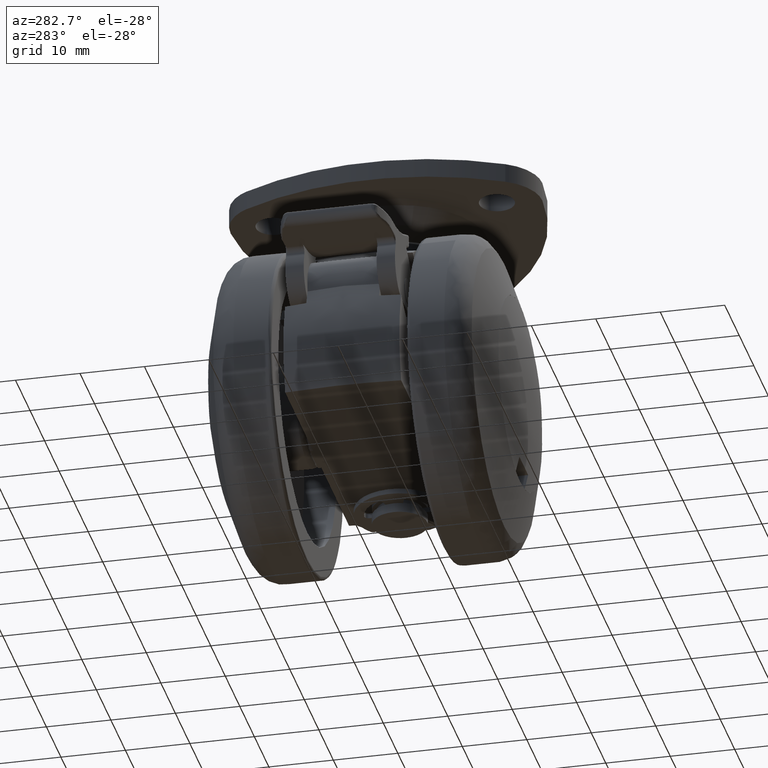
[diagram: clean part render]
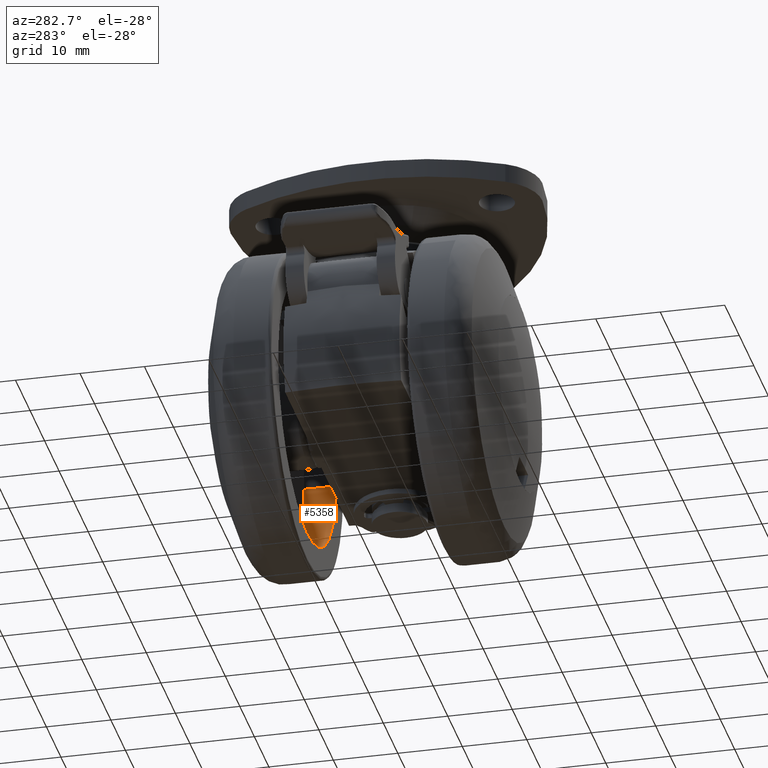
[diagram: same view with one face highlighted and labeled with its STEP entity id]
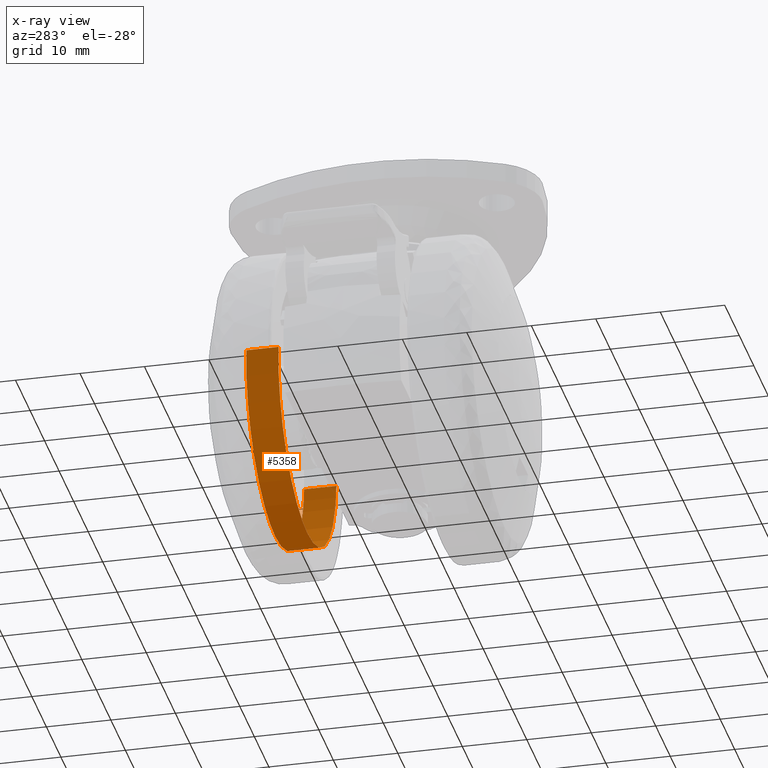
[diagram: x-ray of the same camera — body ghosted, the highlighted face saturated]
A machine part, auxiliary view. The second image highlights one B-rep face of the part: STEP entity #5358.
The next image is the same camera in x-ray: the body ghosted, the highlighted face saturated — about 1% of this face is hidden behind the body in this view.
In plain terms, the highlighted face is a freeform B-spline surface patch.
Its self-contained STEP definition (entity closure, byte-faithful):
#5260=CARTESIAN_POINT('',(19.938346674662551,10.374999999999989,-1.569181914556907));
#5261=CARTESIAN_POINT('',(18.369164760105640,10.374999999999998,-21.507528589219461));
#5262=CARTESIAN_POINT('',(-1.569181914556911,10.375000000000000,-19.938346674662551));
#5263=CARTESIAN_POINT('',(-21.507528589219461,10.374999999999998,-18.369164760105640));
#5264=CARTESIAN_POINT('',(-19.938346674662551,10.374999999999989,1.569181914556915));
#5265=CARTESIAN_POINT('',(19.938346674662551,15.628125000000010,-1.569181914556905));
#5266=CARTESIAN_POINT('',(18.369164760105640,15.628125000000024,-21.507528589219461));
#5267=CARTESIAN_POINT('',(-1.569181914556911,15.628125000000020,-19.938346674662540));
#5268=CARTESIAN_POINT('',(-21.507528589219461,15.628125000000024,-18.369164760105640));
#5269=CARTESIAN_POINT('',(-19.938346674662551,15.628125000000010,1.569181914556917));
#5277=(BOUNDED_SURFACE()B_SPLINE_SURFACE(2,1,((#5260,#5265),(#5261,#5266),(#5262,#5267),(#5263,#5268),(#5264,#5269)),.UNSPECIFIED.,.F.,.F.,.U.)B_SPLINE_SURFACE_WITH_KNOTS((3,2,3),(2,2),(0.0,33.137084989847587,66.274169979695188),(0.0,5.253125000000020),.UNSPECIFIED.)GEOMETRIC_REPRESENTATION_ITEM()RATIONAL_B_SPLINE_SURFACE(((1.0,1.0),(0.707106781186548,0.707106781186548),(1.0,1.0),(0.707106781186548,0.707106781186548),(1.0,1.0)))REPRESENTATION_ITEM('')SURFACE());
#5278=CARTESIAN_POINT('',(0.0,10.500000000000000,-20.0));
#5279=VERTEX_POINT('',#5278);
#5280=CARTESIAN_POINT('',(19.938347830738941,10.499999999999730,-1.569167225075318));
#5281=VERTEX_POINT('',#5280);
#5282=CARTESIAN_POINT('',(0.0,10.500000000000000,-20.0));
#5283=CARTESIAN_POINT('',(18.487823496091725,10.500000000000000,-19.999999999999996));
#5284=CARTESIAN_POINT('',(19.938347830738945,10.499999999999732,-1.569167225075318));
#5292=(BOUNDED_CURVE()B_SPLINE_CURVE(2,(#5282,#5283,#5284),.UNSPECIFIED.,.F.,.U.)B_SPLINE_CURVE_WITH_KNOTS((3,3),(0.0,0.236331426928950),.UNSPECIFIED.)CURVE()GEOMETRIC_REPRESENTATION_ITEM()RATIONAL_B_SPLINE_CURVE((1.0,0.723120510640014,0.969723619742465))REPRESENTATION_ITEM(''));
#5293=EDGE_CURVE('',#5279,#5281,#5292,.T.);
#5294=ORIENTED_EDGE('',*,*,#5293,.T.);
#5295=CARTESIAN_POINT('',(19.938347816798331,15.500000000000000,-1.569167402210918));
#5296=VERTEX_POINT('',#5295);
#5297=CARTESIAN_POINT('',(19.938347830738941,10.499999999999730,-1.569167225075318));
#5298=CARTESIAN_POINT('',(19.938347816798331,15.500000000000000,-1.569167402210918));
#5299=QUASI_UNIFORM_CURVE('',1,(#5297,#5298),.UNSPECIFIED.,.F.,.U.);
#5300=EDGE_CURVE('',#5281,#5296,#5299,.T.);
#5301=ORIENTED_EDGE('',*,*,#5300,.T.);
#5302=CARTESIAN_POINT('',(0.0,15.500000000000000,-19.999999999999989));
#5303=VERTEX_POINT('',#5302);
#5304=CARTESIAN_POINT('',(0.0,15.500000000000000,-19.999999999999989));
#5305=CARTESIAN_POINT('',(18.487823331334962,15.500000000000000,-19.999999999999989));
#5306=CARTESIAN_POINT('',(19.938347816798331,15.500000000000004,-1.569167402210918));
#5314=(BOUNDED_CURVE()B_SPLINE_CURVE(2,(#5304,#5305,#5306),.UNSPECIFIED.,.F.,.U.)B_SPLINE_CURVE_WITH_KNOTS((3,3),(0.0,0.236331425405986),.UNSPECIFIED.)CURVE()GEOMETRIC_REPRESENTATION_ITEM()RATIONAL_B_SPLINE_CURVE((1.0,0.723120512424277,0.969723616564151))REPRESENTATION_ITEM(''));
#5315=EDGE_CURVE('',#5303,#5296,#5314,.T.);
#5316=ORIENTED_EDGE('',*,*,#5315,.F.);
#5317=CARTESIAN_POINT('',(-19.938347816798331,15.500000000000000,1.569167402210931));
#5318=VERTEX_POINT('',#5317);
#5319=CARTESIAN_POINT('',(-19.938347816798331,15.499999999999996,1.569167402210931));
#5320=CARTESIAN_POINT('',(-20.0,15.500000000000004,0.785794850307327));
#5321=CARTESIAN_POINT('',(-20.0,15.500000000000000,5.694420E-015));
#5322=CARTESIAN_POINT('',(-19.999999999999996,15.500000000000004,-19.999999999999996));
#5323=CARTESIAN_POINT('',(0.0,15.500000000000000,-19.999999999999989));
#5331=(BOUNDED_CURVE()B_SPLINE_CURVE(2,(#5319,#5320,#5321,#5322,#5323),.UNSPECIFIED.,.F.,.U.)B_SPLINE_CURVE_WITH_KNOTS((3,2,3),(0.736331425405986,0.750000000000000,1.0),.UNSPECIFIED.)CURVE()GEOMETRIC_REPRESENTATION_ITEM()RATIONAL_B_SPLINE_CURVE((0.969723616564151,0.983986268762270,1.0,0.707106781186548,1.0))REPRESENTATION_ITEM(''));
#5332=EDGE_CURVE('',#5318,#5303,#5331,.T.);
#5333=ORIENTED_EDGE('',*,*,#5332,.F.);
#5334=CARTESIAN_POINT('',(-19.938347830738941,10.499999999999730,1.569167225075325));
#5335=VERTEX_POINT('',#5334);
#5336=CARTESIAN_POINT('',(-19.938347830738941,10.499999999999730,1.569167225075325));
#5337=CARTESIAN_POINT('',(-19.938347816798331,15.500000000000000,1.569167402210931));
#5338=QUASI_UNIFORM_CURVE('',1,(#5336,#5337),.UNSPECIFIED.,.F.,.U.);
#5339=EDGE_CURVE('',#5335,#5318,#5338,.T.);
#5340=ORIENTED_EDGE('',*,*,#5339,.F.);
#5341=CARTESIAN_POINT('',(-19.938347830738945,10.499999999999732,1.569167225075325));
#5342=CARTESIAN_POINT('',(-20.0,10.499999999999998,0.785794761328518));
#5343=CARTESIAN_POINT('',(-20.0,10.500000000000000,3.857510E-015));
#5344=CARTESIAN_POINT('',(-19.999999999999996,10.500000000000002,-19.999999999999996));
#5345=CARTESIAN_POINT('',(0.0,10.500000000000000,-20.0));
#5353=(BOUNDED_CURVE()B_SPLINE_CURVE(2,(#5341,#5342,#5343,#5344,#5345),.UNSPECIFIED.,.F.,.U.)B_SPLINE_CURVE_WITH_KNOTS((3,2,3),(0.736331426928950,0.750000000000000,1.0),.UNSPECIFIED.)CURVE()GEOMETRIC_REPRESENTATION_ITEM()RATIONAL_B_SPLINE_CURVE((0.969723619742465,0.983986270546533,1.0,0.707106781186548,1.0))REPRESENTATION_ITEM(''));
#5354=EDGE_CURVE('',#5335,#5279,#5353,.T.);
#5355=ORIENTED_EDGE('',*,*,#5354,.T.);
#5356=EDGE_LOOP('',(#5294,#5301,#5316,#5333,#5340,#5355));
#5357=FACE_OUTER_BOUND('',#5356,.T.);
#5358=ADVANCED_FACE('',(#5357),#5277,.F.);